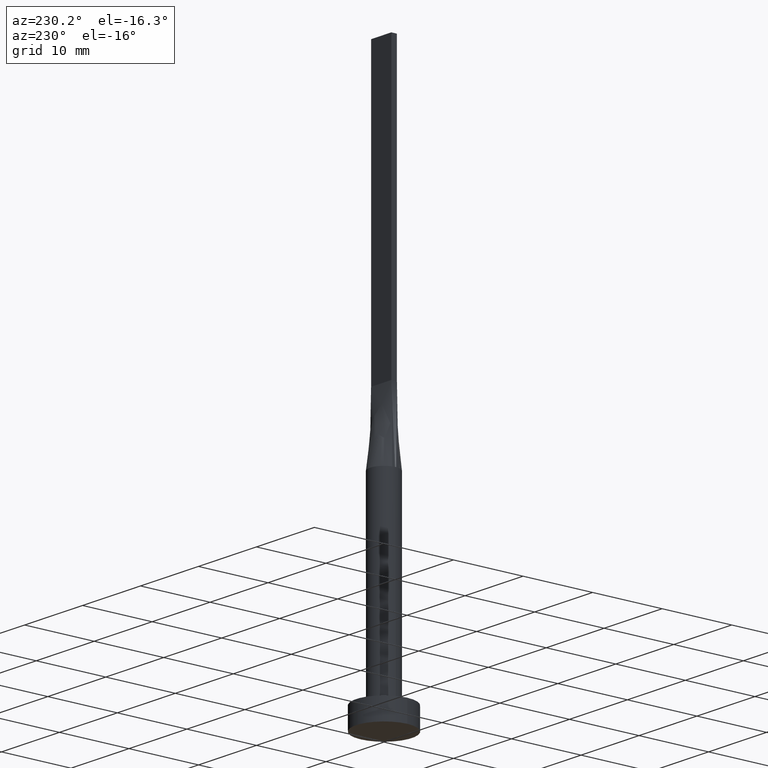
[diagram: clean part render]
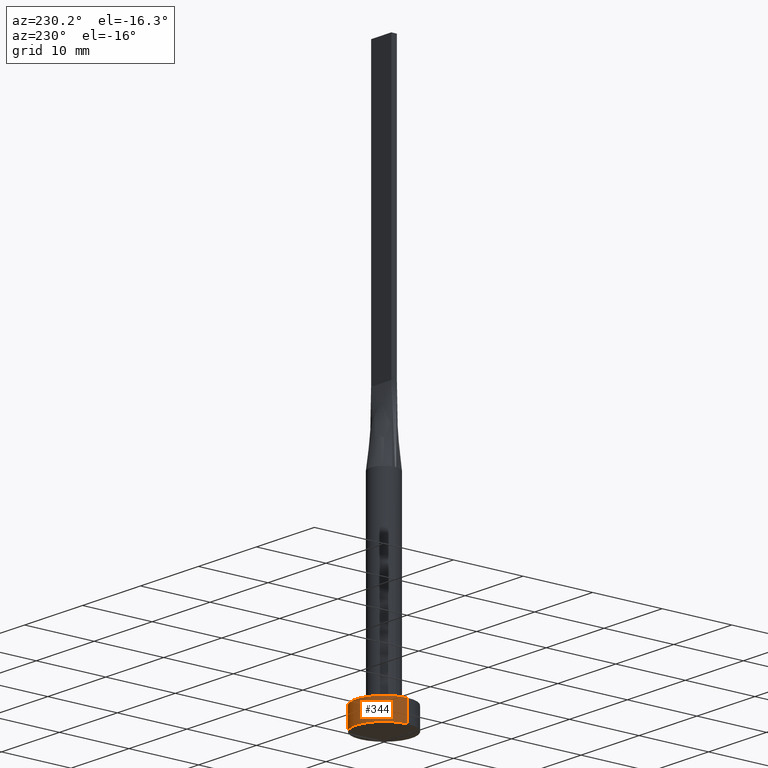
[diagram: same view with one face highlighted and labeled with its STEP entity id]
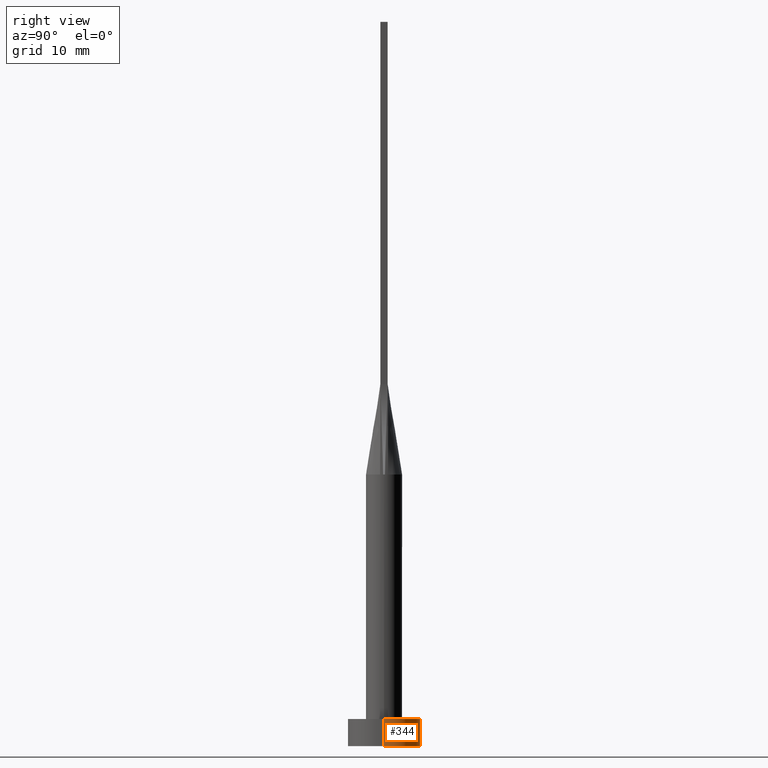
[diagram: same view with one face highlighted and labeled with its STEP entity id]
A machine part, auxiliary view. The second image highlights one B-rep face of the part: STEP entity #344.
A second angle (right view) of the same face is appended — the face is thin or edge-on in the first view.
In plain terms, the highlighted cylindrical surface (edge-blend (fillet) strip) has radius 4 mm, axis along (-0, -0, -1).
Its self-contained STEP definition (entity closure, byte-faithful):
#3 = VERTEX_POINT ( 'NONE', #478 ) ;
#40 = CARTESIAN_POINT ( 'NONE',  ( 4.000000000000000000, 4.898587196589412829E-16, 3.000000000000000000 ) ) ;
#48 = VECTOR ( 'NONE', #309, 1000.000000000000000 ) ;
#53 = CARTESIAN_POINT ( 'NONE',  ( -4.000000000000000000, 0.000000000000000000, 3.000000000000000000 ) ) ;
#69 = ORIENTED_EDGE ( 'NONE', *, *, #572, .T. ) ;
#81 = EDGE_CURVE ( 'NONE', #222, #3, #114, .T. ) ;
#84 = AXIS2_PLACEMENT_3D ( 'NONE', #389, #269, #435 ) ;
#91 = DIRECTION ( 'NONE',  ( -0.000000000000000000, -0.000000000000000000, -1.000000000000000000 ) ) ;
#114 = CIRCLE ( 'NONE', #518, 4.000000000000000000 ) ;
#153 = CARTESIAN_POINT ( 'NONE',  ( 0.000000000000000000, 0.000000000000000000, 0.000000000000000000 ) ) ;
#161 = ORIENTED_EDGE ( 'NONE', *, *, #496, .T. ) ;
#164 = CIRCLE ( 'NONE', #295, 4.000000000000000000 ) ;
#176 = VECTOR ( 'NONE', #91, 1000.000000000000000 ) ;
#192 = CARTESIAN_POINT ( 'NONE',  ( 4.000000000000000000, 4.898587196589412829E-16, 0.000000000000000000 ) ) ;
#200 = CARTESIAN_POINT ( 'NONE',  ( 4.000000000000000000, 4.898587196589412829E-16, 3.000000000000000000 ) ) ;
#206 = CARTESIAN_POINT ( 'NONE',  ( -4.000000000000000000, 0.000000000000000000, 0.000000000000000000 ) ) ;
#215 = DIRECTION ( 'NONE',  ( 0.000000000000000000, 0.000000000000000000, 1.000000000000000000 ) ) ;
#217 = ORIENTED_EDGE ( 'NONE', *, *, #81, .F. ) ;
#222 = VERTEX_POINT ( 'NONE', #40 ) ;
#267 = CYLINDRICAL_SURFACE ( 'NONE', #84, 4.000000000000000000 ) ;
#269 = DIRECTION ( 'NONE',  ( -0.000000000000000000, -0.000000000000000000, -1.000000000000000000 ) ) ;
#285 = DIRECTION ( 'NONE',  ( 0.000000000000000000, 0.000000000000000000, 1.000000000000000000 ) ) ;
#295 = AXIS2_PLACEMENT_3D ( 'NONE', #153, #285, #412 ) ;
#309 = DIRECTION ( 'NONE',  ( -0.000000000000000000, -0.000000000000000000, -1.000000000000000000 ) ) ;
#325 = LINE ( 'NONE', #200, #176 ) ;
#332 = DIRECTION ( 'NONE',  ( 1.000000000000000000, 0.000000000000000000, 0.000000000000000000 ) ) ;
#344 = ADVANCED_FACE ( 'NONE', ( #431 ), #267, .T. ) ;
#355 = LINE ( 'NONE', #53, #48 ) ;
#384 = VERTEX_POINT ( 'NONE', #192 ) ;
#389 = CARTESIAN_POINT ( 'NONE',  ( 0.000000000000000000, 0.000000000000000000, 3.000000000000000000 ) ) ;
#391 = EDGE_CURVE ( 'NONE', #3, #490, #355, .T. ) ;
#402 = ORIENTED_EDGE ( 'NONE', *, *, #391, .F. ) ;
#412 = DIRECTION ( 'NONE',  ( 1.000000000000000000, 0.000000000000000000, 0.000000000000000000 ) ) ;
#431 = FACE_OUTER_BOUND ( 'NONE', #470, .T. ) ;
#435 = DIRECTION ( 'NONE',  ( -1.000000000000000000, 0.000000000000000000, 0.000000000000000000 ) ) ;
#470 = EDGE_LOOP ( 'NONE', ( #217, #69, #161, #402 ) ) ;
#478 = CARTESIAN_POINT ( 'NONE',  ( -4.000000000000000000, 0.000000000000000000, 3.000000000000000000 ) ) ;
#490 = VERTEX_POINT ( 'NONE', #206 ) ;
#496 = EDGE_CURVE ( 'NONE', #384, #490, #164, .T. ) ;
#518 = AXIS2_PLACEMENT_3D ( 'NONE', #567, #215, #332 ) ;
#567 = CARTESIAN_POINT ( 'NONE',  ( 0.000000000000000000, 0.000000000000000000, 3.000000000000000000 ) ) ;
#572 = EDGE_CURVE ( 'NONE', #222, #384, #325, .T. ) ;